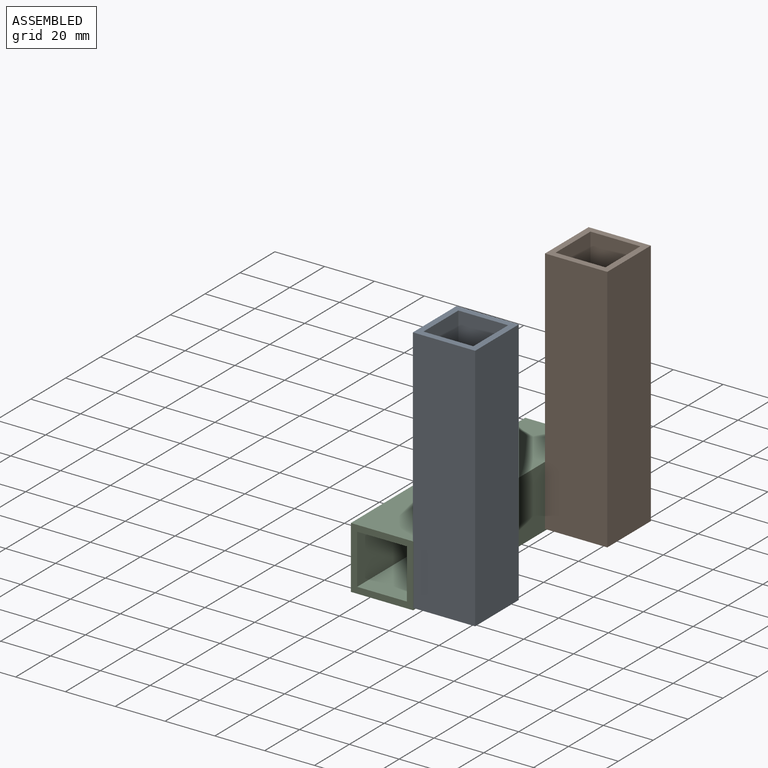
[diagram: assembled view]
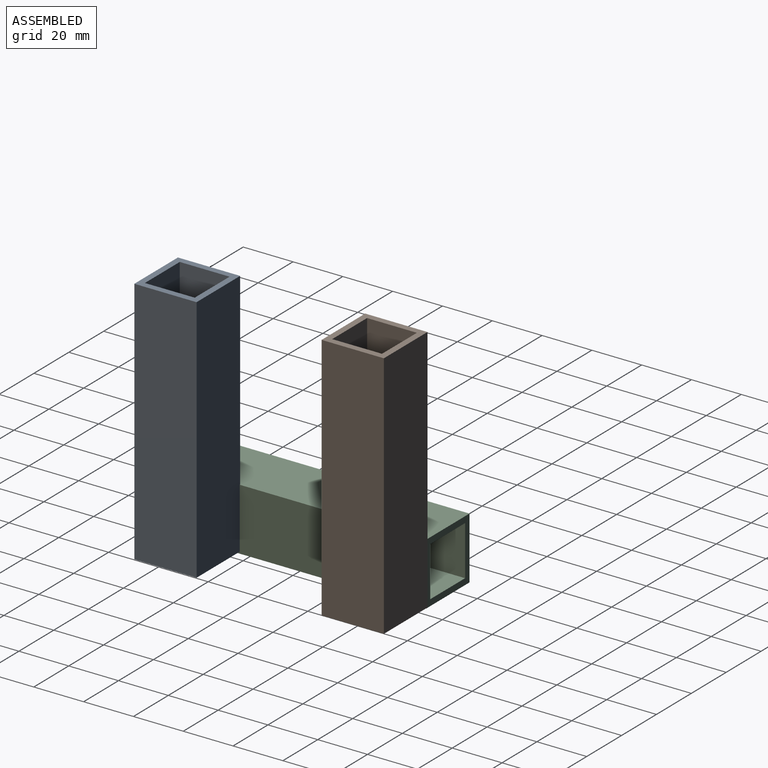
[diagram: assembled view, second angle]
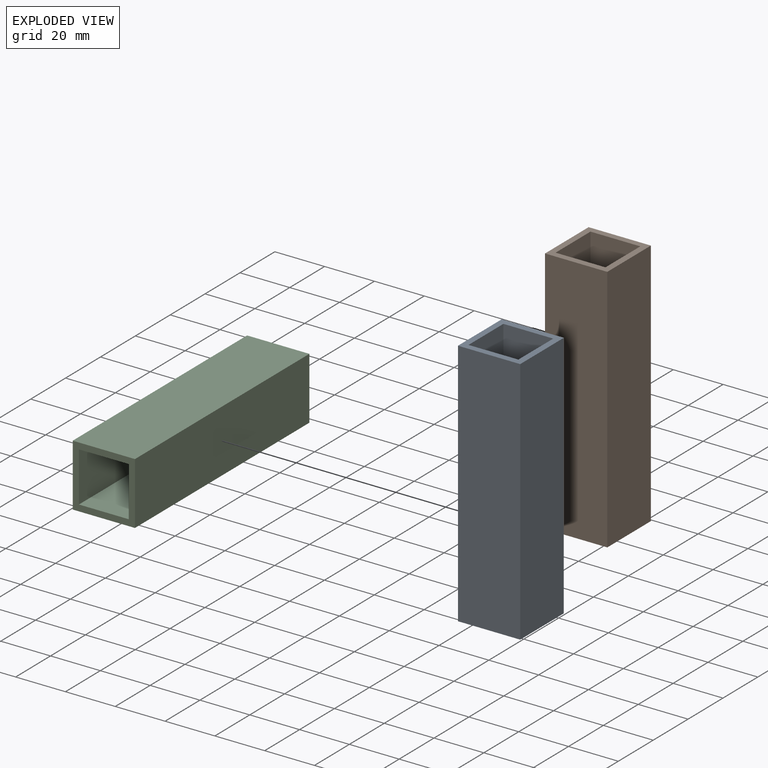
[diagram: exploded view]
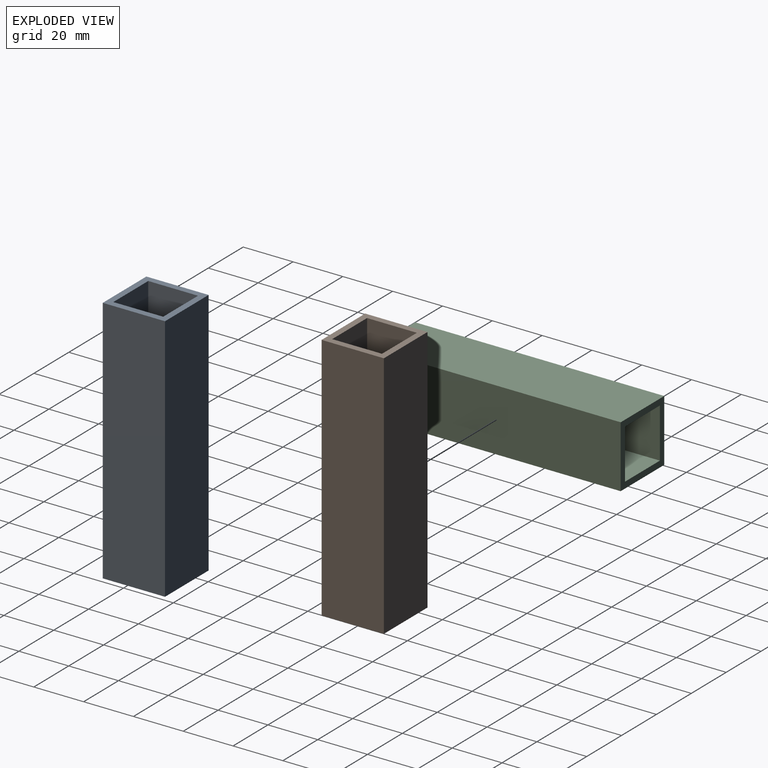
[diagram: exploded view, second angle]
ASSEMBLY  parts=3 mates=2
PART A: 10 faces, bbox 25x25x100 mm
  f0: plane 25x25mm, normal (0,0,1), area 225mm2, adj f2,f3,f4,f5,f6,f7,f8,f9
  f1: plane 25x25mm, normal (0,0,-1), area 225mm2, adj f2,f3,f4,f5,f6,f7,f8,f9
  f2: plane 100x25mm, normal (0,1,0), area 2500mm2, adj f0,f1,f3,f5
  f3: plane 100x25mm, normal (-1,0,0), area 2500mm2, adj f0,f1,f2,f4
  f4: plane 100x25mm, normal (0,-1,0), area 2500mm2, adj f0,f1,f3,f5
  f5: plane 100x25mm, normal (1,0,0), area 2500mm2, adj f0,f1,f2,f4
  f6: plane 100x20mm, normal (0,-1,0), area 2000mm2, adj f0,f1,f7,f9
  f7: plane 100x20mm, normal (1,0,0), area 2000mm2, adj f0,f1,f6,f8
  f8: plane 100x20mm, normal (0,1,0), area 2000mm2, adj f0,f1,f7,f9
  f9: plane 100x20mm, normal (-1,0,0), area 2000mm2, adj f0,f1,f6,f8
PART B: same geometry as A
PART C: same geometry as A
PLACE A t=(-0.13,-21.24,-22.03)mm
PLACE B rot(axis=(1,0,0),0deg) t=(0.14,54.16,-22.13)mm
PLACE C rot(axis=(-1,0,0),90deg) t=(-24.86,-46.49,-22.74)mm
MATE planar B.f3 <-> C.f5  axis (-1,0,0) through (0.14,41.66,27.87)mm
MATE parallel C.f5 <-> A.f3  axis (1,0,0) through (0.14,3.51,-10.24)mm
